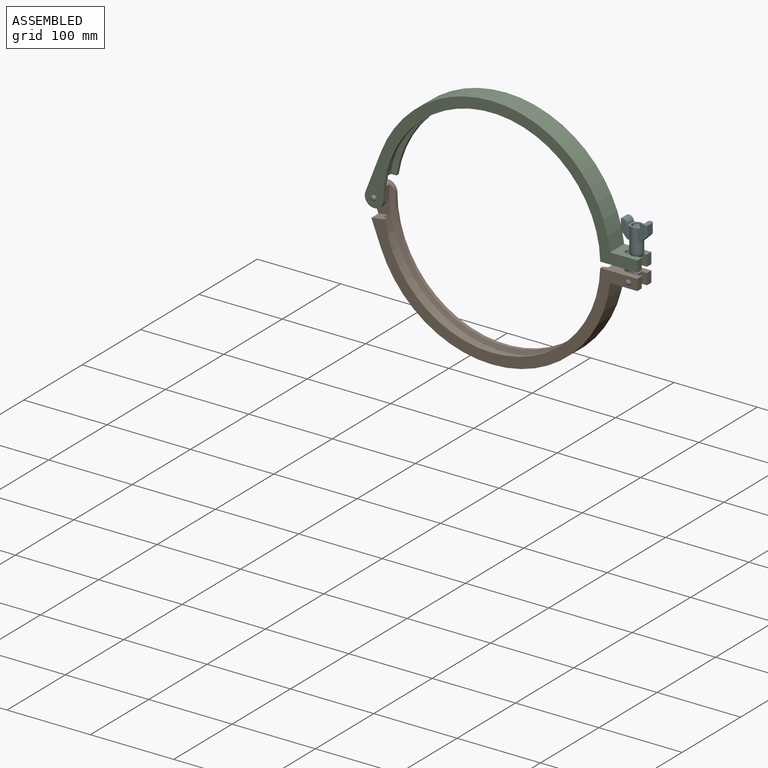
[diagram: assembled view]
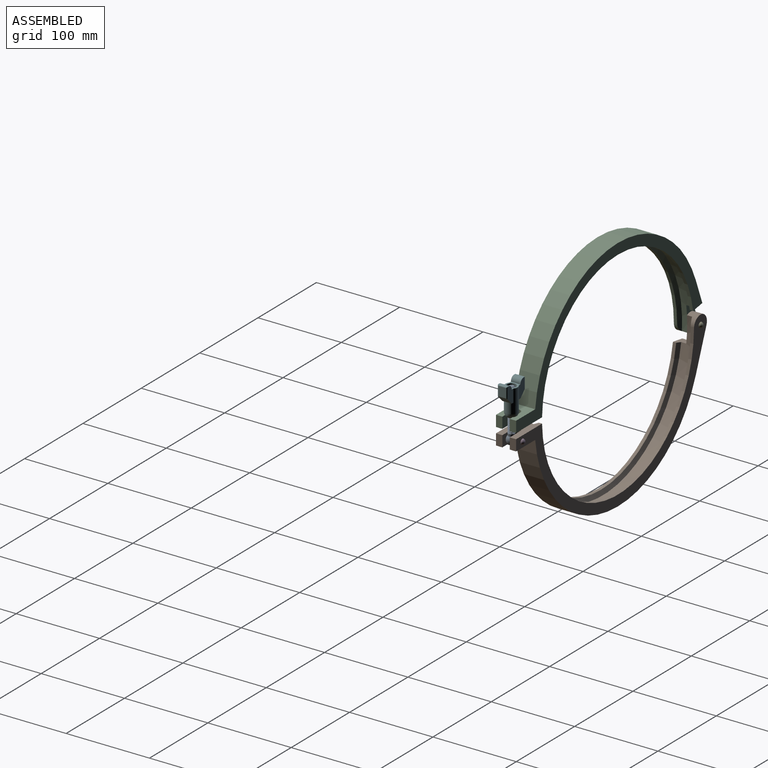
[diagram: assembled view, second angle]
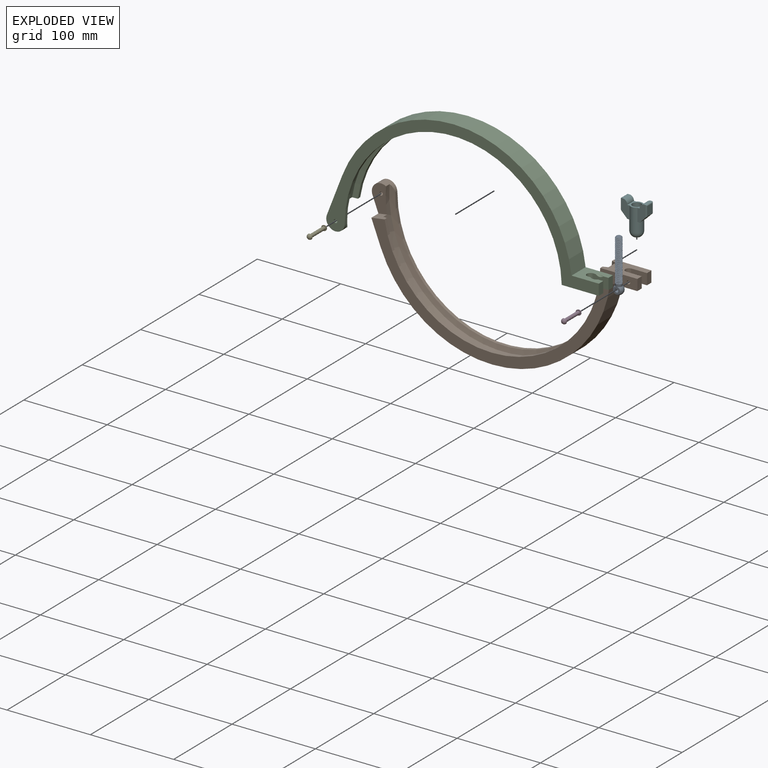
[diagram: exploded view]
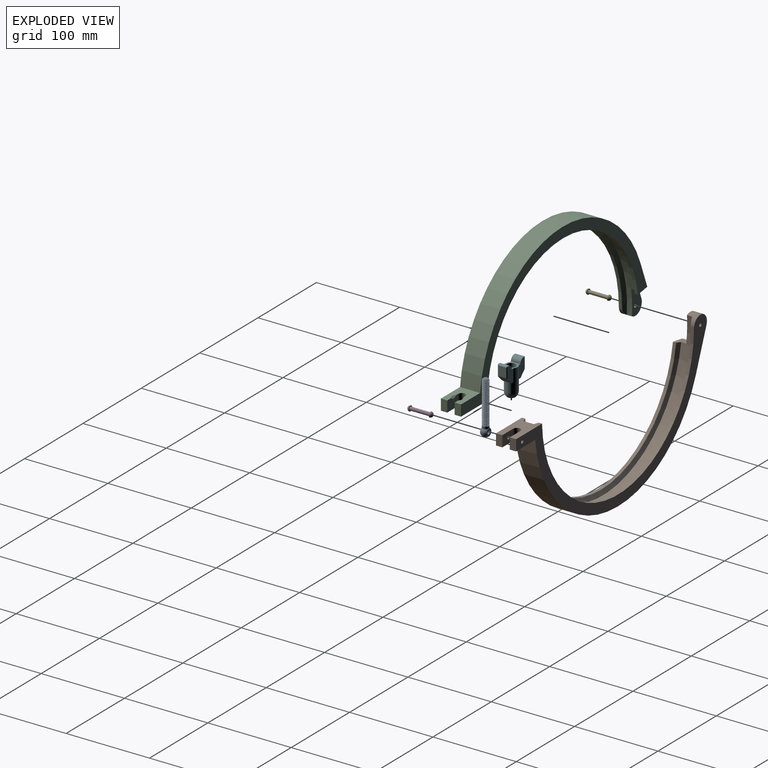
[diagram: exploded view, second angle]
ASSEMBLY  parts=6 mates=5
PART A: 48 faces, bbox 12x8.3x64.4 mm
  f0: cone r=2.74mm half-angle=45deg, axis (0,0,-1), area 16.9mm2, adj f1,f39,f44,f45,f46,f47
  f1: cone r=2.74mm half-angle=45deg, axis (0,0,-1), area 0mm2, adj f0,f38,f46
  f2: cylinder r=2.1mm len=7.62mm, axis (0,-1,0), area 100.3mm2, adj f42,f43
  f3: cylinder r=3.81mm len=7.62mm, axis (0,0,1), area 4.2mm2, adj f4,f5,f44,f46
  f4: cylinder r=3.81mm len=7.62mm, axis (0,0,1), area 66mm2, adj f3,f40,f41,f44,f46
  f5: cylinder r=3.81mm len=7.62mm, axis (0,0,1), area 4.2mm2, adj f3,f6,f44,f46
  f6: cylinder r=3.81mm len=7.62mm, axis (0,0,1), area 4.2mm2, adj f5,f7,f44,f46
  f7: cylinder r=3.81mm len=7.62mm, axis (0,0,1), area 4.2mm2, adj f6,f8,f44,f46
  f8: cylinder r=3.81mm len=7.62mm, axis (0,0,1), area 4.2mm2, adj f7,f9,f44,f46
  f9: cylinder r=3.81mm len=7.62mm, axis (0,0,1), area 4.2mm2, adj f8,f10,f44,f46
  f10: cylinder r=3.81mm len=7.62mm, axis (0,0,1), area 4.2mm2, adj f9,f11,f44,f46
  f11: cylinder r=3.81mm len=7.62mm, axis (0,0,1), area 4.2mm2, adj f10,f12,f44,f46
  f12: cylinder r=3.81mm len=7.62mm, axis (0,0,1), area 4.2mm2, adj f11,f13,f44,f46
  f13: cylinder r=3.81mm len=7.62mm, axis (0,0,1), area 4.2mm2, adj f12,f14,f44,f46
  f14: cylinder r=3.81mm len=7.62mm, axis (0,0,1), area 4.2mm2, adj f13,f15,f44,f46
  f15: cylinder r=3.81mm len=7.62mm, axis (0,0,1), area 4.2mm2, adj f14,f16,f44,f46
  f16: cylinder r=3.81mm len=7.62mm, axis (0,0,1), area 4.2mm2, adj f15,f17,f44,f46
  f17: cylinder r=3.81mm len=7.62mm, axis (0,0,1), area 4.2mm2, adj f16,f18,f44,f46
  f18: cylinder r=3.81mm len=7.62mm, axis (0,0,1), area 4.2mm2, adj f17,f19,f44,f46
  f19: cylinder r=3.81mm len=7.62mm, axis (0,0,1), area 4.2mm2, adj f18,f20,f44,f46
  f20: cylinder r=3.81mm len=7.62mm, axis (0,0,1), area 4.2mm2, adj f19,f21,f44,f46
  f21: cylinder r=3.81mm len=7.62mm, axis (0,0,1), area 4.2mm2, adj f20,f22,f44,f46
  f22: cylinder r=3.81mm len=7.62mm, axis (0,0,1), area 4.2mm2, adj f21,f23,f44,f46
  f23: cylinder r=3.81mm len=7.62mm, axis (0,0,1), area 4.2mm2, adj f22,f24,f44,f46
  f24: cylinder r=3.81mm len=7.62mm, axis (0,0,1), area 4.2mm2, adj f23,f25,f44,f46
  f25: cylinder r=3.81mm len=7.62mm, axis (0,0,1), area 4.2mm2, adj f24,f26,f44,f46
  f26: cylinder r=3.81mm len=7.62mm, axis (0,0,1), area 4.2mm2, adj f25,f27,f44,f46
  f27: cylinder r=3.81mm len=7.62mm, axis (0,0,1), area 4.2mm2, adj f26,f28,f44,f46
  f28: cylinder r=3.81mm len=7.62mm, axis (0,0,1), area 4.2mm2, adj f27,f29,f44,f46
  f29: cylinder r=3.81mm len=7.62mm, axis (0,0,1), area 4.2mm2, adj f28,f30,f44,f46
  f30: cylinder r=3.81mm len=7.62mm, axis (0,0,1), area 4.2mm2, adj f29,f31,f44,f46
  f31: cylinder r=3.81mm len=7.62mm, axis (0,0,1), area 4.2mm2, adj f30,f32,f44,f46
  f32: cylinder r=3.81mm len=7.62mm, axis (0,0,1), area 4.2mm2, adj f31,f33,f44,f46
  f33: cylinder r=3.81mm len=7.62mm, axis (0,0,1), area 4.2mm2, adj f32,f34,f44,f46
  f34: cylinder r=3.81mm len=7.62mm, axis (0,0,1), area 4.2mm2, adj f33,f35,f44,f46
  f35: cylinder r=3.81mm len=7.62mm, axis (0,0,1), area 4.2mm2, adj f34,f36,f44,f46
  f36: cylinder r=3.81mm len=7.62mm, axis (0,0,1), area 4.2mm2, adj f35,f37,f44,f46
  f37: cylinder r=3.81mm len=7.62mm, axis (0,0,1), area 4.2mm2, adj f36,f38,f44,f46
  f38: cylinder r=3.81mm len=7.62mm, axis (0,0,1), area 4.2mm2, adj f1,f37,f39,f44,f46
  f39: cylinder r=3.81mm len=2.55mm, axis (0,0,1), area 0.2mm2, adj f0,f38,f44
  f40: sphere r=5.71mm, area 221.4mm2, adj f4,f42,f43
  f41: plane 8.17x8.17mm, normal (0,0,1), area 10mm2, adj f4,f44,f45,f46
  f42: plane 8.52x8.52mm, normal (0,-1,0), area 43.2mm2, adj f2,f40
  f43: plane 8.52x8.52mm, normal (0,1,0), area 43.2mm2, adj f2,f40
  f44: bspline ~51.71x7.62mm, area 796mm2, adj f0,f3,f4,f5,f6,f7,f8,f9
  f45: cylinder r=2.89mm len=50.65mm, axis (0,0,-1), area 114.4mm2, adj f0,f41,f44,f46
  f46: bspline ~51.37x7.77mm, area 829.2mm2, adj f0,f1,f3,f4,f5,f6,f7,f8
  f47: plane 5.48x5.48mm, normal (0,0,1), area 23.6mm2, adj f0
PART B: 22 faces, bbox 327x24.1x154 mm
  f0: cylinder r=2.03mm len=7.62mm, axis (0,-1,0), area 97.3mm2, adj f12,f15
  f1: cylinder r=2.03mm len=7.62mm, axis (0,-1,0), area 97.3mm2, adj f4,f17
  f2: cylinder r=2.1mm len=12.07mm, axis (0,-1,0), area 158.9mm2, adj f12,f20
  f3: cylinder r=135.81mm len=271.58mm, axis (0,1,0), area 5090.3mm2, adj f5,f8,f11,f13,f20,f21
  f4: plane 319.15x139.45mm, normal (0,-1,0), area 5582.9mm2, adj f1,f6,f7,f10,f13,f18,f19,f21
  f5: cone r=130.18mm half-angle=70deg, axis (0,1,0), area 2361.7mm2, adj f3,f6,f13,f21
  f6: cylinder r=130.18mm len=258.76mm, axis (0,1,0), area 1510.4mm2, adj f4,f5,f13,f21
  f7: plane 47.56x24.13mm, normal (-0.93,0,-0.36), area 992.3mm2, adj f4,f8,f10,f12,f20,f21
  f8: cylinder r=11.11mm len=22.23mm, axis (0,-1,0), area 389.9mm2, adj f3,f7,f9,f11,f12,f20
  f9: cylinder r=130.18mm len=260.31mm, axis (0,1,0), area 1589mm2, adj f8,f11,f12,f13
  f10: cylinder r=142.88mm len=275.15mm, axis (0,1,0), area 9155.4mm2, adj f4,f7,f12,f19
  f11: cone r=135.81mm half-angle=70deg, axis (0,-1,0), area 2524.5mm2, adj f3,f8,f9,f13
  f12: plane 327.03x153.99mm, normal (0,1,0), area 6175.6mm2, adj f0,f2,f7,f8,f9,f10,f13,f14
  f13: plane 44.5x24.13mm, normal (0,0,1), area 798.7mm2, adj f3,f4,f5,f6,f9,f11,f12,f14
  f14: plane 13.21x7.62mm, normal (1,0,0), area 100.6mm2, adj f12,f13,f15,f19
  f15: plane 18.42x13.21mm, normal (0,-1,0), area 230.3mm2, adj f0,f13,f14,f16,f19
  f16: cylinder r=4.45mm len=13.21mm, axis (0,0,1), area 184.4mm2, adj f13,f15,f17,f19
  f17: plane 18.42x13.21mm, normal (0,1,0), area 230.3mm2, adj f1,f13,f16,f18,f19
  f18: plane 13.21x7.62mm, normal (1,0,0), area 100.6mm2, adj f4,f13,f17,f19
  f19: plane 32.72x24.13mm, normal (0,0,-1), area 594.8mm2, adj f4,f10,f12,f14,f15,f16,f17,f18
  f20: plane 33.54x18.2mm, normal (0,-1,0), area 439.7mm2, adj f2,f3,f7,f8,f21
  f21: plane 15.89x12.07mm, normal (-0.15,0,0.99), area 153.8mm2, adj f3,f4,f5,f6,f7,f20
PART C: 22 faces, bbox 327x24.1x154 mm
  f0: cylinder r=2.1mm len=12.07mm, axis (0,1,0), area 158.9mm2, adj f10,f18
  f1: cylinder r=135.81mm len=271.58mm, axis (0,-1,0), area 5090.3mm2, adj f3,f6,f9,f11,f18,f19
  f2: plane 319.15x139.45mm, normal (0,1,0), area 5595.9mm2, adj f4,f5,f8,f11,f16,f17,f19
  f3: cone r=130.18mm half-angle=70deg, axis (0,-1,0), area 2361.7mm2, adj f1,f4,f11,f19
  f4: cylinder r=130.18mm len=258.76mm, axis (0,-1,0), area 1510.4mm2, adj f2,f3,f11,f19
  f5: plane 47.56x24.13mm, normal (-0.93,0,0.36), area 992.3mm2, adj f2,f6,f8,f10,f18,f19
  f6: cylinder r=11.11mm len=22.23mm, axis (0,1,0), area 389.9mm2, adj f1,f5,f7,f9,f10,f18
  f7: cylinder r=130.18mm len=260.31mm, axis (0,-1,0), area 1589mm2, adj f6,f9,f10,f11
  f8: cylinder r=142.88mm len=275.15mm, axis (0,-1,0), area 9155.4mm2, adj f2,f5,f10,f17
  f9: cone r=135.81mm half-angle=70deg, axis (0,1,0), area 2524.5mm2, adj f1,f6,f7,f11
  f10: plane 327.03x153.99mm, normal (0,-1,0), area 6188.6mm2, adj f0,f5,f6,f7,f8,f11,f12,f17
  f11: plane 44.5x24.13mm, normal (0,0,-1), area 798.7mm2, adj f1,f2,f3,f4,f7,f9,f10,f12
  f12: plane 13.21x7.62mm, normal (1,0,0), area 100.6mm2, adj f10,f11,f13,f17
  f13: plane 18.42x13.21mm, normal (0,1,0), area 231.9mm2, adj f11,f12,f14,f17,f21
  f14: cylinder r=4.45mm len=13.21mm, axis (0,0,-1), area 184.4mm2, adj f11,f13,f15,f17
  f15: plane 18.42x13.21mm, normal (0,-1,0), area 231.9mm2, adj f11,f14,f16,f17,f20
  f16: plane 13.21x7.62mm, normal (1,0,0), area 100.6mm2, adj f2,f11,f15,f17
  f17: plane 32.72x24.13mm, normal (0,0,1), area 571mm2, adj f2,f8,f10,f12,f13,f14,f15,f16
  f18: plane 33.54x18.2mm, normal (0,1,0), area 439.7mm2, adj f0,f1,f5,f6,f19
  f19: plane 15.89x12.07mm, normal (-0.15,0,-0.99), area 153.8mm2, adj f1,f2,f3,f4,f5,f18
  f20: sphere r=7.94mm, area 17.1mm2, adj f15,f17
  f21: sphere r=7.94mm, area 17.1mm2, adj f13,f17
PART D: 5 faces, bbox 6.4x30.2x6.4 mm
  f0: sphere r=3.18mm, area 60.9mm2, adj f4
  f1: cylinder r=2.03mm len=24.13mm, axis (0,1,0), area 308.1mm2, adj f3,f4
  f2: sphere r=3.18mm, area 60.9mm2, adj f3
  f3: plane 6.35x6.35mm, normal (0,-1,0), area 18.7mm2, adj f1,f2
  f4: plane 6.35x6.35mm, normal (0,1,0), area 18.7mm2, adj f0,f1
PART E: 5 faces, bbox 6.4x30.2x6.4 mm
  f0: sphere r=3.18mm, area 60.9mm2, adj f4
  f1: cylinder r=2.03mm len=24.13mm, axis (0,1,0), area 308.1mm2, adj f3,f4
  f2: sphere r=3.18mm, area 60.9mm2, adj f3
  f3: plane 6.35x6.35mm, normal (0,-1,0), area 18.7mm2, adj f1,f2
  f4: plane 6.35x6.35mm, normal (0,1,0), area 18.7mm2, adj f0,f1
PART F: 29 faces, bbox 31.5x14.7x40.6 mm
  f0: cylinder r=7.37mm len=27.65mm, axis (0,0,-1), area 881.1mm2, adj f3,f4,f8,f11,f12,f15,f16,f17
  f1: cylinder r=5.46mm len=19.05mm, axis (0,0,-1), area 653.7mm2, adj f10,f11
  f2: cylinder r=3.81mm len=14.48mm, axis (0,0,-1), area 346.6mm2, adj f9,f10
  f3: sphere r=7.37mm, area 271.8mm2, adj f0,f9
  f4: plane 5.72x2.72mm, normal (0,0,-1), area 4.7mm2, adj f0,f17,f28
  f5: plane 11.43x1.52mm, normal (0,0,1), area 17.4mm2, adj f17,f21,f26,f27
  f6: plane 11.43x1.52mm, normal (0,0,1), area 17.4mm2, adj f12,f15,f24,f25
  f7: plane 11.18x8.89mm, normal (-1,0,0), area 99.4mm2, adj f13,f14,f23,f24
  f8: plane 5.72x2.72mm, normal (0,0,-1), area 4.7mm2, adj f0,f12,f23
  f9: plane 8.89x8.89mm, normal (0,0,-1), area 16.5mm2, adj f2,f3
  f10: plane 10.92x10.92mm, normal (0,0,1), area 48.1mm2, adj f1,f2
  f11: plane 14.73x14.73mm, normal (0,0,1), area 95.7mm2, adj f0,f1,f12,f15,f17,f21,f25,f27
  f12: plane 20.83x9.83mm, normal (0,-1,0), area 157.6mm2, adj f0,f6,f8,f11,f13,f23,f25
  f13: cylinder r=1.27mm len=13.72mm, axis (0,0,1), area 24.8mm2, adj f7,f12,f23,f24
  f14: cylinder r=1.27mm len=13.72mm, axis (0,0,1), area 24.8mm2, adj f7,f15,f23,f24
  f15: plane 20.83x9.83mm, normal (0,1,0), area 157.6mm2, adj f0,f6,f11,f14,f16,f23,f25
  f16: plane 5.72x2.72mm, normal (0,0,-1), area 4.7mm2, adj f0,f15,f23
  f17: plane 20.83x9.83mm, normal (0,1,0), area 157.6mm2, adj f0,f4,f5,f11,f18,f27,f28
  f18: cylinder r=1.27mm len=13.72mm, axis (0,0,1), area 24.8mm2, adj f17,f19,f26,f28
  f19: plane 11.18x8.89mm, normal (1,0,0), area 99.4mm2, adj f18,f20,f26,f28
  f20: cylinder r=1.27mm len=13.72mm, axis (0,0,1), area 24.8mm2, adj f19,f21,f26,f28
  f21: plane 20.83x9.83mm, normal (0,-1,0), area 157.6mm2, adj f0,f5,f11,f20,f22,f27,f28
  f22: plane 5.72x2.72mm, normal (0,0,-1), area 4.7mm2, adj f0,f21,f28
  f23: plane 11.43x8.38mm, normal (-0.71,0,-0.71), area 134.5mm2, adj f7,f8,f12,f13,f14,f15,f16
  f24: cylinder r=1.27mm len=11.43mm, axis (0,-1,0), area 21mm2, adj f6,f7,f13,f14
  f25: cylinder r=5.59mm len=11.43mm, axis (0,-1,0), area 100.3mm2, adj f6,f11,f12,f15
  f26: cylinder r=1.27mm len=11.43mm, axis (0,-1,0), area 21mm2, adj f5,f18,f19,f20
  f27: cylinder r=5.59mm len=11.43mm, axis (0,-1,0), area 100.3mm2, adj f5,f11,f17,f21
  f28: plane 11.43x8.38mm, normal (0.71,0,-0.71), area 134.5mm2, adj f4,f17,f18,f19,f20,f21,f22
PLACE A t=(1.54,0,0)mm
PLACE B at identity
PLACE C at identity
PLACE D at identity
PLACE E at identity
PLACE F t=(1.54,0,-0.41)mm
MATE fastened A.f0 <-> F.f1  axis (0,0,1) through (165.5,0,-5.77)mm
MATE fastened B.f17 <-> A.f2  axis (0,1,0) through (165.5,-4.45,-10.03)mm
MATE fastened B.f2 <-> E.f1  axis (0,1,0) through (-141.29,12.07,0)mm
MATE fastened B.f0 <-> D.f1  axis (0,-1,0) through (163.96,-12.07,-10.03)mm
MATE fastened C.f0 <-> B.f2  axis (0,1,0) through (-141.29,0,0)mm
